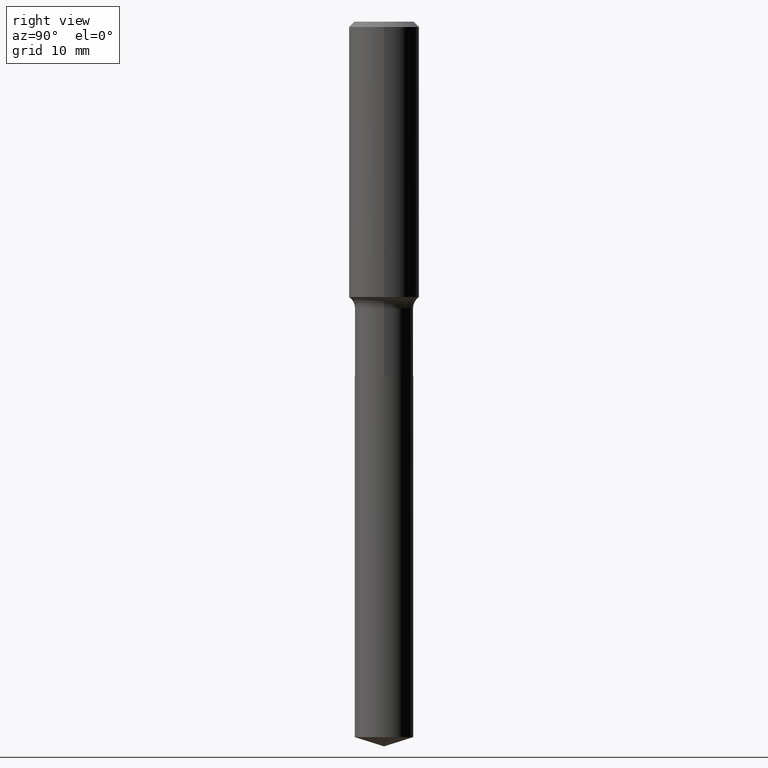
[diagram: clean part render]
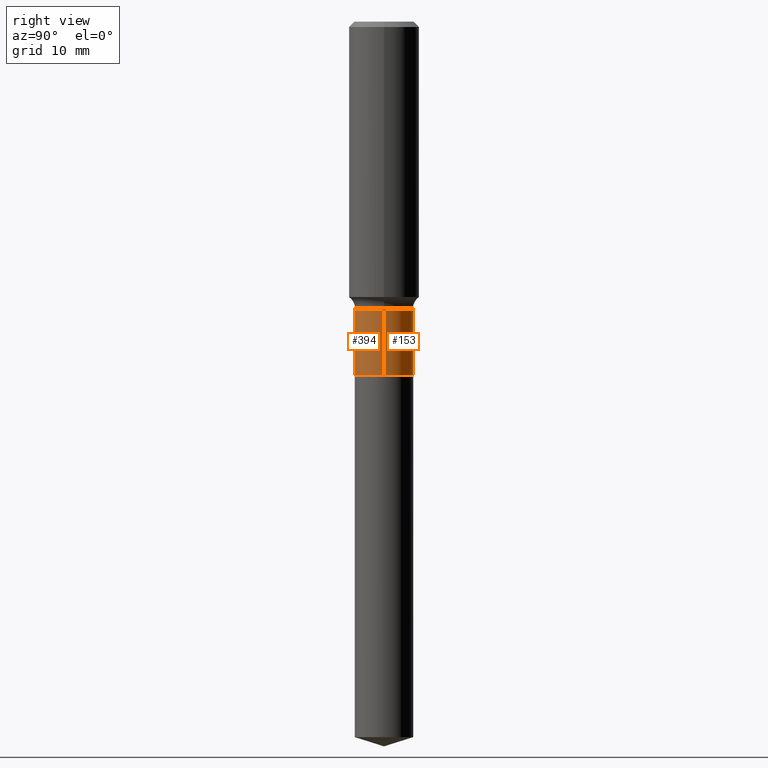
[diagram: same view with one multi-face feature highlighted, each face labeled with its STEP entity id]
A machine part, right view. The highlighted faces form ONE feature: a constant-radius fillet chain: 2 tangent blend faces with common blend radius 4.1504 mm. The faces share edges in the B-rep.
Their STEP definitions:
[1] entity #394 (Cylinder):
#13 = VECTOR ( 'NONE', #336, 39.37007874015748143 ) ;
#30 = VECTOR ( 'NONE', #200, 39.37007874015748143 ) ;
#33 = DIRECTION ( 'NONE',  ( 1.000000000000000000, -6.982962677686266711E-15, 4.876176775795935793E-29 ) ) ;
#40 = CARTESIAN_POINT ( 'NONE',  ( 0.000000000000000000, 0.000000000000000000, 0.000000000000000000 ) ) ;
#76 = DIRECTION ( 'NONE',  ( -2.445468806185136597E-29, 3.491481338843145583E-15, 1.000000000000000000 ) ) ;
#79 = CARTESIAN_POINT ( 'NONE',  ( 0.1634000000000000175, -8.053450856175595808E-15, -1.979800000000000004 ) ) ;
#82 = CYLINDRICAL_SURFACE ( 'NONE', #277, 0.1633999999999999897 ) ;
#111 = EDGE_CURVE ( 'NONE', #373, #335, #340, .T. ) ;
#118 = LINE ( 'NONE', #236, #30 ) ;
#123 = DIRECTION ( 'NONE',  ( -2.445468806185136597E-29, 3.491481338843145583E-15, 1.000000000000000000 ) ) ;
#126 = CARTESIAN_POINT ( 'NONE',  ( -0.1634000000000000175, -5.096231451175739708E-15, -1.979800000000000004 ) ) ;
#139 = CARTESIAN_POINT ( 'NONE',  ( 4.841539142485333655E-29, -6.912434754641659266E-15, -1.979800000000000004 ) ) ;
#142 = ORIENTED_EDGE ( 'NONE', *, *, #324, .T. ) ;
#161 = EDGE_CURVE ( 'NONE', #457, #373, #118, .T. ) ;
#165 = ORIENTED_EDGE ( 'NONE', *, *, #111, .F. ) ;
#189 = ORIENTED_EDGE ( 'NONE', *, *, #161, .F. ) ;
#192 = CARTESIAN_POINT ( 'NONE',  ( 0.1633999999999999897, -1.141016101533935951E-15, 7.967672851650558929E-30 ) ) ;
#200 = DIRECTION ( 'NONE',  ( -2.445468806185136877E-29, 3.491481338843145188E-15, 1.000000000000000000 ) ) ;
#229 = LINE ( 'NONE', #192, #13 ) ;
#233 = AXIS2_PLACEMENT_3D ( 'NONE', #139, #76, #296 ) ;
#236 = CARTESIAN_POINT ( 'NONE',  ( -0.1633999999999999897, 1.161026830232003631E-15, -8.037539937476515647E-30 ) ) ;
#250 = AXIS2_PLACEMENT_3D ( 'NONE', #453, #123, #492 ) ;
#265 = DIRECTION ( 'NONE',  ( -2.445468806185136597E-29, 3.491481338843145583E-15, 1.000000000000000000 ) ) ;
#277 = AXIS2_PLACEMENT_3D ( 'NONE', #40, #265, #33 ) ;
#295 = ORIENTED_EDGE ( 'NONE', *, *, #415, .T. ) ;
#296 = DIRECTION ( 'NONE',  ( 1.000000000000000000, -6.982962677686265922E-15, 0.000000000000000000 ) ) ;
#324 = EDGE_CURVE ( 'NONE', #364, #335, #229, .T. ) ;
#335 = VERTEX_POINT ( 'NONE', #424 ) ;
#336 = DIRECTION ( 'NONE',  ( -2.445468806185136877E-29, 3.491481338843145188E-15, 1.000000000000000000 ) ) ;
#340 = CIRCLE ( 'NONE', #250, 0.1633999999999999619 ) ;
#364 = VERTEX_POINT ( 'NONE', #79 ) ;
#373 = VERTEX_POINT ( 'NONE', #483 ) ;
#394 = ADVANCED_FACE ( 'NONE', ( #446 ), #82, .T. ) ;
#415 = EDGE_CURVE ( 'NONE', #457, #364, #433, .T. ) ;
#424 = CARTESIAN_POINT ( 'NONE',  ( 0.1633999999999999619, -6.743097909707763164E-15, -1.604500000000000037 ) ) ;
#432 = EDGE_LOOP ( 'NONE', ( #189, #295, #142, #165 ) ) ;
#433 = CIRCLE ( 'NONE', #233, 0.1634000000000000175 ) ;
#446 = FACE_OUTER_BOUND ( 'NONE', #432, .T. ) ;
#453 = CARTESIAN_POINT ( 'NONE',  ( 3.923754699524052199E-29, -5.602081808173827411E-15, -1.604500000000000037 ) ) ;
#457 = VERTEX_POINT ( 'NONE', #126 ) ;
#483 = CARTESIAN_POINT ( 'NONE',  ( -0.1633999999999999619, -5.096231451175739708E-15, -1.604500000000000037 ) ) ;
#492 = DIRECTION ( 'NONE',  ( 1.000000000000000000, -6.982962677686268288E-15, 0.000000000000000000 ) ) ;
[2] entity #153 (Cylinder):
#6 = CIRCLE ( 'NONE', #150, 0.1634000000000000175 ) ;
#13 = VECTOR ( 'NONE', #336, 39.37007874015748143 ) ;
#30 = VECTOR ( 'NONE', #200, 39.37007874015748143 ) ;
#31 = DIRECTION ( 'NONE',  ( -2.445468806185136597E-29, 3.491481338843145583E-15, 1.000000000000000000 ) ) ;
#45 = CYLINDRICAL_SURFACE ( 'NONE', #484, 0.1633999999999999897 ) ;
#47 = EDGE_LOOP ( 'NONE', ( #158, #298, #402, #226 ) ) ;
#72 = DIRECTION ( 'NONE',  ( 1.000000000000000000, -6.982962677686268288E-15, 0.000000000000000000 ) ) ;
#79 = CARTESIAN_POINT ( 'NONE',  ( 0.1634000000000000175, -8.053450856175595808E-15, -1.979800000000000004 ) ) ;
#87 = EDGE_CURVE ( 'NONE', #364, #457, #6, .T. ) ;
#104 = AXIS2_PLACEMENT_3D ( 'NONE', #187, #108, #72 ) ;
#108 = DIRECTION ( 'NONE',  ( -2.445468806185136597E-29, 3.491481338843145583E-15, 1.000000000000000000 ) ) ;
#118 = LINE ( 'NONE', #236, #30 ) ;
#126 = CARTESIAN_POINT ( 'NONE',  ( -0.1634000000000000175, -5.096231451175739708E-15, -1.979800000000000004 ) ) ;
#150 = AXIS2_PLACEMENT_3D ( 'NONE', #235, #31, #383 ) ;
#153 = ADVANCED_FACE ( 'NONE', ( #389 ), #45, .T. ) ;
#158 = ORIENTED_EDGE ( 'NONE', *, *, #87, .T. ) ;
#161 = EDGE_CURVE ( 'NONE', #457, #373, #118, .T. ) ;
#187 = CARTESIAN_POINT ( 'NONE',  ( 3.923754699524052199E-29, -5.602081808173827411E-15, -1.604500000000000037 ) ) ;
#192 = CARTESIAN_POINT ( 'NONE',  ( 0.1633999999999999897, -1.141016101533935951E-15, 7.967672851650558929E-30 ) ) ;
#200 = DIRECTION ( 'NONE',  ( -2.445468806185136877E-29, 3.491481338843145188E-15, 1.000000000000000000 ) ) ;
#226 = ORIENTED_EDGE ( 'NONE', *, *, #324, .F. ) ;
#229 = LINE ( 'NONE', #192, #13 ) ;
#235 = CARTESIAN_POINT ( 'NONE',  ( 4.841539142485333655E-29, -6.912434754641659266E-15, -1.979800000000000004 ) ) ;
#236 = CARTESIAN_POINT ( 'NONE',  ( -0.1633999999999999897, 1.161026830232003631E-15, -8.037539937476515647E-30 ) ) ;
#254 = EDGE_CURVE ( 'NONE', #335, #373, #458, .T. ) ;
#298 = ORIENTED_EDGE ( 'NONE', *, *, #161, .T. ) ;
#314 = DIRECTION ( 'NONE',  ( 1.000000000000000000, -6.982962677686266711E-15, 4.876176775795935793E-29 ) ) ;
#324 = EDGE_CURVE ( 'NONE', #364, #335, #229, .T. ) ;
#335 = VERTEX_POINT ( 'NONE', #424 ) ;
#336 = DIRECTION ( 'NONE',  ( -2.445468806185136877E-29, 3.491481338843145188E-15, 1.000000000000000000 ) ) ;
#342 = DIRECTION ( 'NONE',  ( -2.445468806185136597E-29, 3.491481338843145583E-15, 1.000000000000000000 ) ) ;
#364 = VERTEX_POINT ( 'NONE', #79 ) ;
#373 = VERTEX_POINT ( 'NONE', #483 ) ;
#383 = DIRECTION ( 'NONE',  ( 1.000000000000000000, -6.982962677686265922E-15, 0.000000000000000000 ) ) ;
#389 = FACE_OUTER_BOUND ( 'NONE', #47, .T. ) ;
#402 = ORIENTED_EDGE ( 'NONE', *, *, #254, .F. ) ;
#414 = CARTESIAN_POINT ( 'NONE',  ( 0.000000000000000000, 0.000000000000000000, 0.000000000000000000 ) ) ;
#424 = CARTESIAN_POINT ( 'NONE',  ( 0.1633999999999999619, -6.743097909707763164E-15, -1.604500000000000037 ) ) ;
#457 = VERTEX_POINT ( 'NONE', #126 ) ;
#458 = CIRCLE ( 'NONE', #104, 0.1633999999999999619 ) ;
#483 = CARTESIAN_POINT ( 'NONE',  ( -0.1633999999999999619, -5.096231451175739708E-15, -1.604500000000000037 ) ) ;
#484 = AXIS2_PLACEMENT_3D ( 'NONE', #414, #342, #314 ) ;